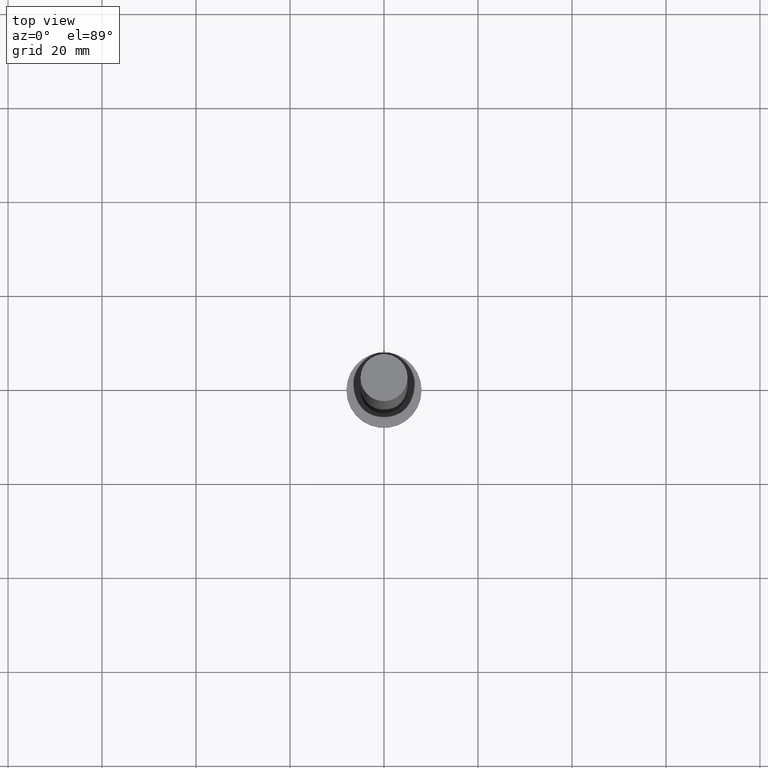
[diagram: clean part render]
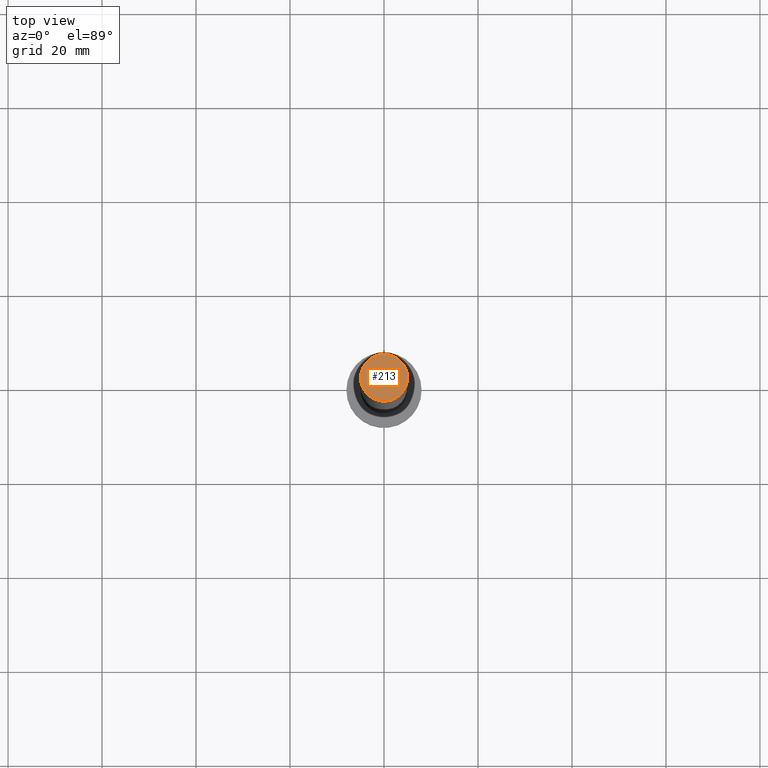
[diagram: same view with one face highlighted and labeled with its STEP entity id]
A machine part, top view. The second image highlights one B-rep face of the part: STEP entity #213.
In plain terms, the highlighted planar face has unit normal (0, 0, 1).
Its self-contained STEP definition (entity closure, byte-faithful):
#7 = CARTESIAN_POINT ( 'NONE',  ( 0.000000000000000000, 0.000000000000000000, 154.0000000000000000 ) ) ;
#25 = PLANE ( 'NONE',  #189 ) ;
#30 = CARTESIAN_POINT ( 'NONE',  ( 5.000000000000000888, 6.123233995736767268E-16, 154.0000000000000000 ) ) ;
#41 = EDGE_LOOP ( 'NONE', ( #154, #237 ) ) ;
#64 = CARTESIAN_POINT ( 'NONE',  ( 0.000000000000000000, 0.000000000000000000, 154.0000000000000000 ) ) ;
#69 = DIRECTION ( 'NONE',  ( 0.000000000000000000, 0.000000000000000000, 1.000000000000000000 ) ) ;
#73 = CIRCLE ( 'NONE', #103, 5.000000000000000888 ) ;
#75 = VERTEX_POINT ( 'NONE', #94 ) ;
#81 = DIRECTION ( 'NONE',  ( 0.000000000000000000, 0.000000000000000000, 1.000000000000000000 ) ) ;
#94 = CARTESIAN_POINT ( 'NONE',  ( -5.000000000000000888, 0.000000000000000000, 154.0000000000000000 ) ) ;
#103 = AXIS2_PLACEMENT_3D ( 'NONE', #7, #157, #141 ) ;
#104 = FACE_OUTER_BOUND ( 'NONE', #41, .T. ) ;
#124 = EDGE_CURVE ( 'NONE', #75, #151, #242, .T. ) ;
#141 = DIRECTION ( 'NONE',  ( 1.000000000000000000, 0.000000000000000000, 0.000000000000000000 ) ) ;
#146 = EDGE_CURVE ( 'NONE', #151, #75, #73, .T. ) ;
#151 = VERTEX_POINT ( 'NONE', #30 ) ;
#152 = DIRECTION ( 'NONE',  ( 1.000000000000000000, 0.000000000000000000, 0.000000000000000000 ) ) ;
#154 = ORIENTED_EDGE ( 'NONE', *, *, #124, .T. ) ;
#157 = DIRECTION ( 'NONE',  ( 0.000000000000000000, 0.000000000000000000, 1.000000000000000000 ) ) ;
#176 = DIRECTION ( 'NONE',  ( 1.000000000000000000, 0.000000000000000000, -0.000000000000000000 ) ) ;
#189 = AXIS2_PLACEMENT_3D ( 'NONE', #64, #69, #176 ) ;
#199 = AXIS2_PLACEMENT_3D ( 'NONE', #254, #81, #152 ) ;
#213 = ADVANCED_FACE ( 'NONE', ( #104 ), #25, .T. ) ;
#237 = ORIENTED_EDGE ( 'NONE', *, *, #146, .T. ) ;
#242 = CIRCLE ( 'NONE', #199, 5.000000000000000888 ) ;
#254 = CARTESIAN_POINT ( 'NONE',  ( 0.000000000000000000, 0.000000000000000000, 154.0000000000000000 ) ) ;